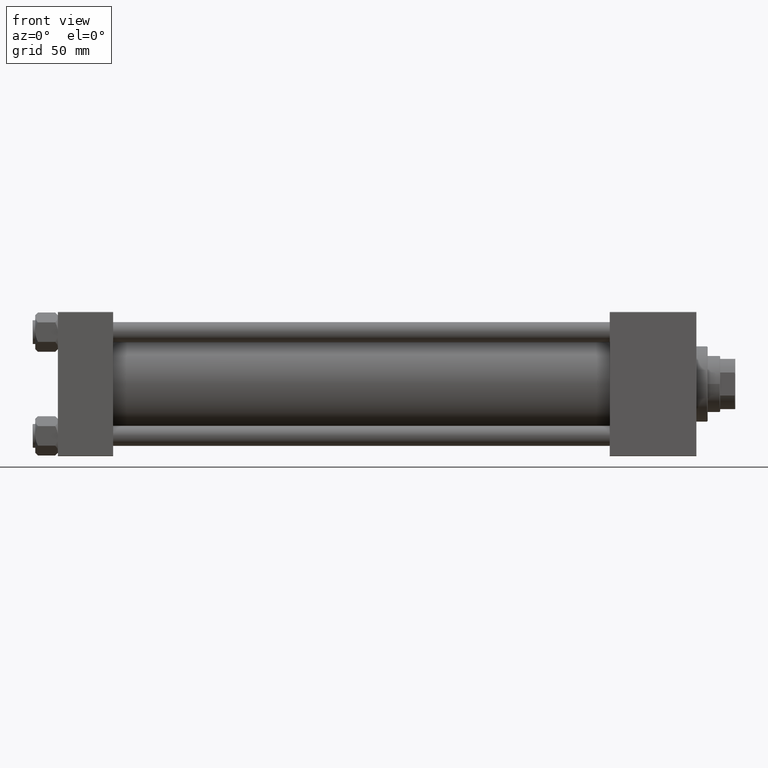
[diagram: clean part render]
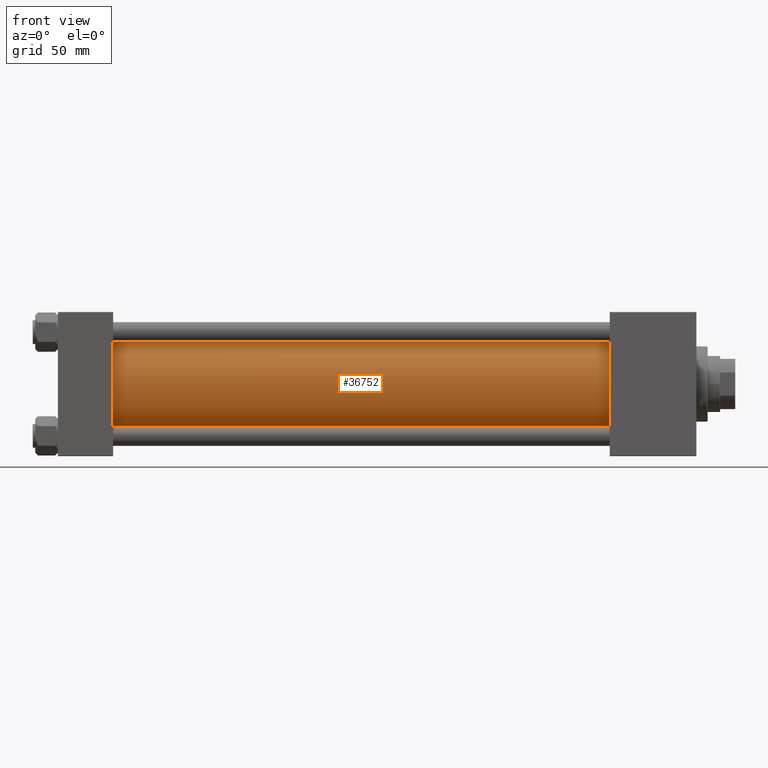
[diagram: same view with one face highlighted and labeled with its STEP entity id]
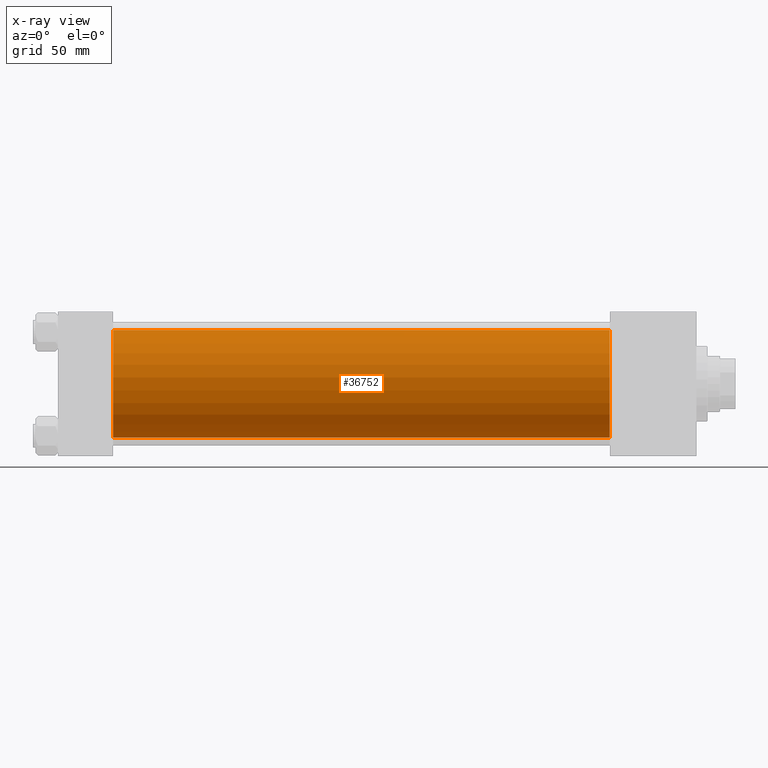
[diagram: x-ray of the same camera — body ghosted, the highlighted face saturated]
A machine part, front view. The second image highlights one B-rep face of the part: STEP entity #36752.
The next image is the same camera in x-ray: the body ghosted, the highlighted face saturated — about 0% of this face is hidden behind the body in this view.
In plain terms, the highlighted cylindrical surface (partial cylindrical patch) has radius 43 mm, axis along (-1, -0, -0).
Its self-contained STEP definition (entity closure, byte-faithful):
#2828 = FACE_OUTER_BOUND ( 'NONE', #35223, .T. ) ;
#3052 = EDGE_CURVE ( 'NONE', #3686, #19691, #32920, .T. ) ;
#3686 = VERTEX_POINT ( 'NONE', #44929 ) ;
#4793 = DIRECTION ( 'NONE',  ( -1.000000000000000000, -0.000000000000000000, -0.000000000000000000 ) ) ;
#6519 = DIRECTION ( 'NONE',  ( 0.000000000000000000, 0.000000000000000000, 1.000000000000000000 ) ) ;
#8489 = CARTESIAN_POINT ( 'NONE',  ( 440.0000000000000000, -2.602085213965210642E-15, 43.00000000000000000 ) ) ;
#8603 = AXIS2_PLACEMENT_3D ( 'NONE', #17418, #33702, #17937 ) ;
#8738 = LINE ( 'NONE', #24785, #33830 ) ;
#9023 = LINE ( 'NONE', #8489, #44460 ) ;
#11609 = ORIENTED_EDGE ( 'NONE', *, *, #47622, .T. ) ;
#11961 = DIRECTION ( 'NONE',  ( 0.000000000000000000, 0.000000000000000000, -1.000000000000000000 ) ) ;
#14830 = ORIENTED_EDGE ( 'NONE', *, *, #39958, .T. ) ;
#17418 = CARTESIAN_POINT ( 'NONE',  ( 43.99999999999998579, -2.602085213965210642E-15, 0.000000000000000000 ) ) ;
#17937 = DIRECTION ( 'NONE',  ( 0.000000000000000000, 0.000000000000000000, 1.000000000000000000 ) ) ;
#18762 = ORIENTED_EDGE ( 'NONE', *, *, #3052, .F. ) ;
#19607 = CARTESIAN_POINT ( 'NONE',  ( 43.99999999999998579, -2.602085213965210642E-15, 43.00000000000000000 ) ) ;
#19691 = VERTEX_POINT ( 'NONE', #44078 ) ;
#20637 = VERTEX_POINT ( 'NONE', #35584 ) ;
#20787 = EDGE_CURVE ( 'NONE', #19691, #20637, #8738, .T. ) ;
#20888 = DIRECTION ( 'NONE',  ( 1.000000000000000000, 0.000000000000000000, 0.000000000000000000 ) ) ;
#24530 = DIRECTION ( 'NONE',  ( -1.000000000000000000, -0.000000000000000000, -0.000000000000000000 ) ) ;
#24785 = CARTESIAN_POINT ( 'NONE',  ( 440.0000000000000000, 2.663896022368408223E-15, -43.00000000000000000 ) ) ;
#25399 = CIRCLE ( 'NONE', #8603, 43.00000000000000000 ) ;
#32920 = CIRCLE ( 'NONE', #34593, 43.00000000000000000 ) ;
#33702 = DIRECTION ( 'NONE',  ( 1.000000000000000000, -0.000000000000000000, 0.000000000000000000 ) ) ;
#33830 = VECTOR ( 'NONE', #4793, 1000.000000000000000 ) ;
#34593 = AXIS2_PLACEMENT_3D ( 'NONE', #47945, #20888, #11961 ) ;
#34649 = CARTESIAN_POINT ( 'NONE',  ( 440.0000000000000000, -2.602085213965210642E-15, 0.000000000000000000 ) ) ;
#35223 = EDGE_LOOP ( 'NONE', ( #36150, #18762, #14830, #11609 ) ) ;
#35584 = CARTESIAN_POINT ( 'NONE',  ( 43.99999999999998579, 2.663896022368408223E-15, -43.00000000000000000 ) ) ;
#36150 = ORIENTED_EDGE ( 'NONE', *, *, #20787, .F. ) ;
#36752 = ADVANCED_FACE ( 'NONE', ( #2828 ), #42538, .T. ) ;
#39958 = EDGE_CURVE ( 'NONE', #3686, #50650, #9023, .T. ) ;
#42538 = CYLINDRICAL_SURFACE ( 'NONE', #45175, 43.00000000000000000 ) ;
#44078 = CARTESIAN_POINT ( 'NONE',  ( 440.0000000000000000, 2.663896022368408223E-15, -43.00000000000000000 ) ) ;
#44460 = VECTOR ( 'NONE', #24530, 1000.000000000000000 ) ;
#44929 = CARTESIAN_POINT ( 'NONE',  ( 440.0000000000000000, -2.602085213965210642E-15, 43.00000000000000000 ) ) ;
#45175 = AXIS2_PLACEMENT_3D ( 'NONE', #34649, #50918, #6519 ) ;
#47622 = EDGE_CURVE ( 'NONE', #50650, #20637, #25399, .T. ) ;
#47945 = CARTESIAN_POINT ( 'NONE',  ( 440.0000000000000000, -2.602085213965210642E-15, 0.000000000000000000 ) ) ;
#50650 = VERTEX_POINT ( 'NONE', #19607 ) ;
#50918 = DIRECTION ( 'NONE',  ( -1.000000000000000000, -0.000000000000000000, -0.000000000000000000 ) ) ;